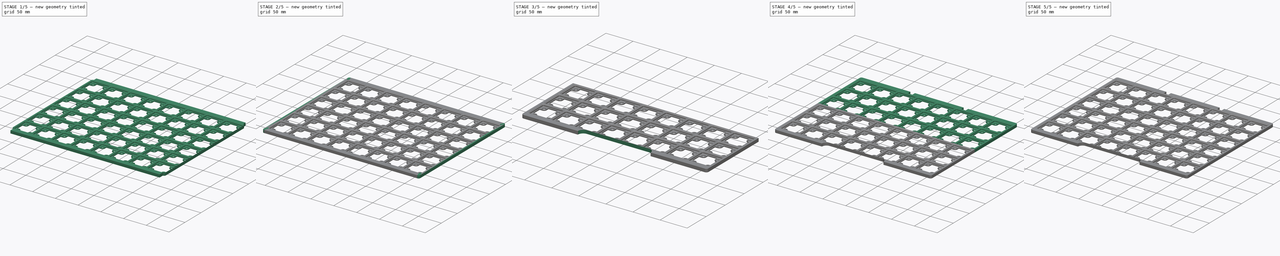
[diagram: build sequence overview — one tinted view per stage of 5, left to right]
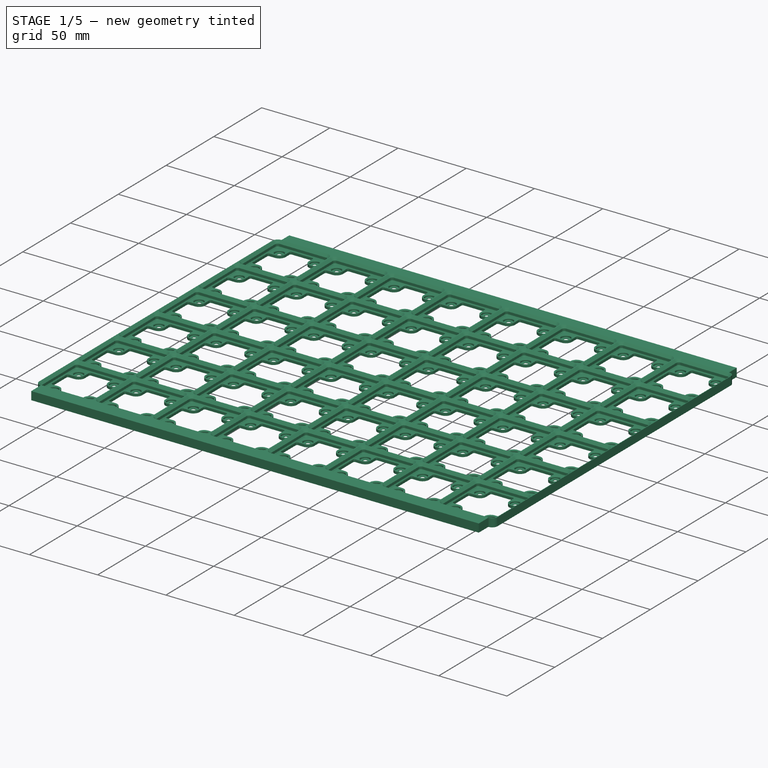
[diagram: stage 1 of 5 — iso view after this stage's code; geometry added in this stage tinted green]
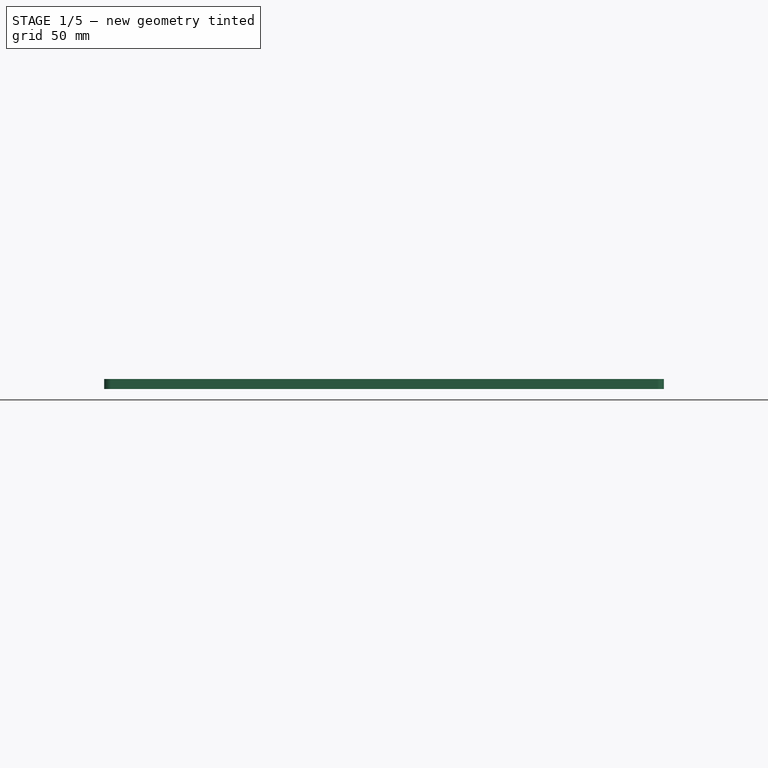
[diagram: stage 1 of 5 — front view after this stage's code; geometry added in this stage tinted green]
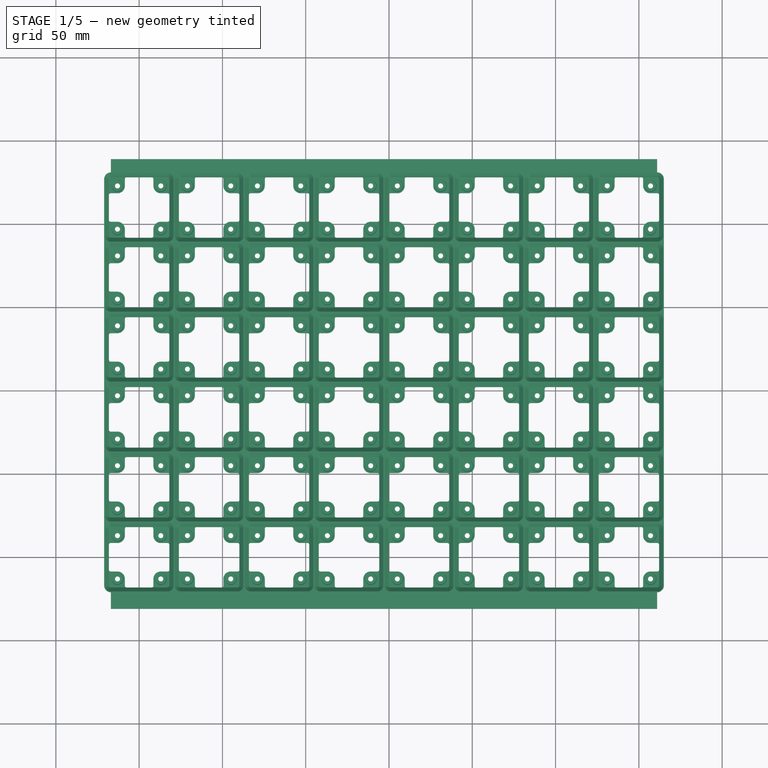
[diagram: stage 1 of 5 — top view after this stage's code; geometry added in this stage tinted green]
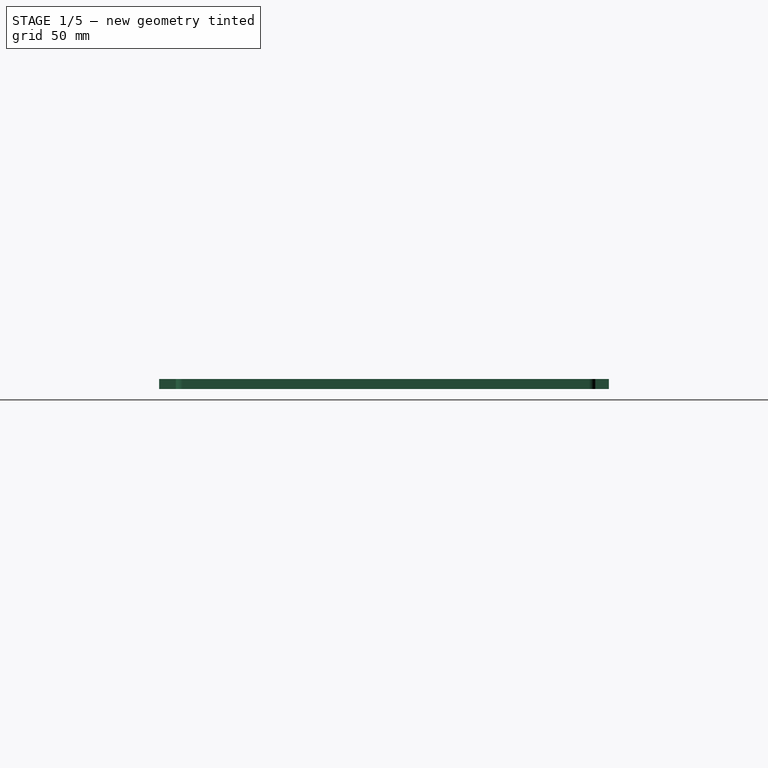
[diagram: stage 1 of 5 — right view after this stage's code; geometry added in this stage tinted green]
FCSTD DOCUMENT  (FreeCAD 1.0R39109 (Git))
Label: Sortainer drawer base
License: All rights reserved
LicenseURL: https://en.wikipedia.org/wiki/All_rights_reserved
objects: Part::FeaturePython×9, PartDesign::Pad×5, Sketcher::SketchObject×4, App::DocumentObjectGroup×3, PartDesign::Plane×2, PartDesign::FeaturePython×1, PartDesign::Pocket×1, PartDesign::Body×1
note: 40 computed .brp shape members not serialized (recipe doc carries the construction recipe); baked Part::Feature solids carry a one-line shape summary decoded from their .brp

FEATURE [PartDesign::FeaturePython] MagnetBaseplate  # WARN: FeaturePython — macro-defined, semantics opaque (R4)
  BaseProfileBottomChamfer = 0.7
  BaseProfileHeight = 4.25
  BaseProfileTopChamfer = 1.75
  BaseProfileVerticalSection = 1.8
  BaseThickness = 6.4
  BaseplateProfileTotalHeight = 0
  BaseplateTopLedgeWidth = 0.4
  BinBottomRadius = 1.15
  BinOuterRadius = 4
  BinVerticalRadius = 1.85
  GridSize = 42
  HeightUnitValue = 7
  MagnetBase = 0.4
  MagnetBaseHole = 3
  MagnetChamfer = 0.4
  MagnetEdgeThickness = 1.2
  MagnetHoleDepth = 1.4
  MagnetHoleDiameter = 6.5
  MagnetHoleDistanceFromEdge = 8
  MagnetHoles = true
  SmallFillet = 1
  Suppressed = false
  Tolerance = 0.25
  TotalHeight = 6.05
  version = 0.6.0
  xGridUnits = 8
  xTotalWidth = 336
  yGridUnits = 6
  yTotalWidth = 252
FEATURE [PartDesign::Pad] Pad  label="Back Pad"
  BaseFeature = -> MagnetBaseplate
  Direction = (0,1,0)
  Length = 8
  Length2 = 10
  Profile = -> MagnetBaseplate [Face2]
  Refine = true
  Suppressed = false
  Type = 0
FEATURE [PartDesign::Pad] Pad001  label="Front Pad"
  BaseFeature = -> Pad
  Direction = (0,-1,0)
  Length = 10
  Length2 = 10
  Profile = -> Pad [Face9]
  Refine = true
  Suppressed = false
  Type = 0
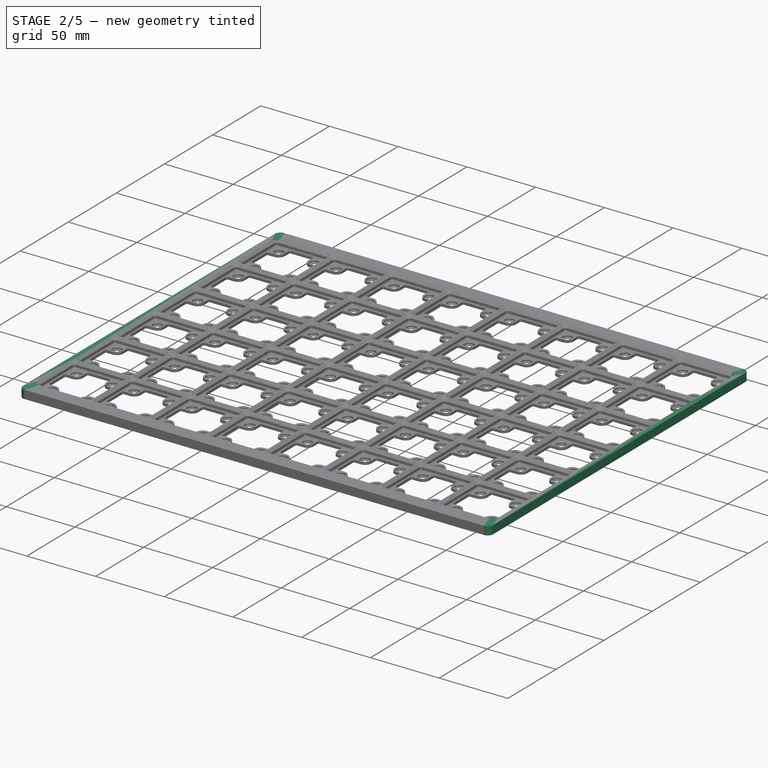
[diagram: stage 2 of 5 — iso view after this stage's code; geometry added in this stage tinted green]
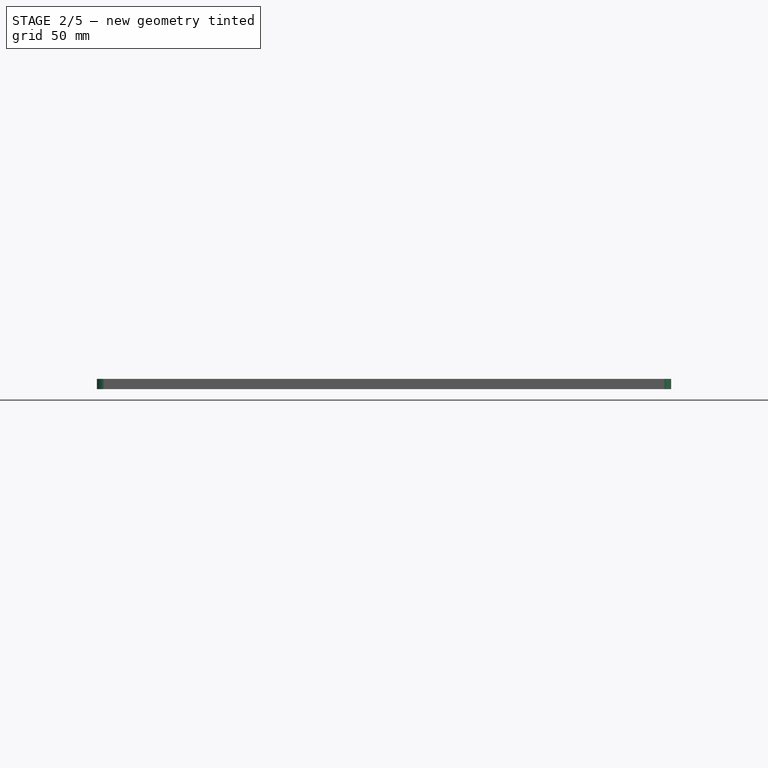
[diagram: stage 2 of 5 — front view after this stage's code; geometry added in this stage tinted green]
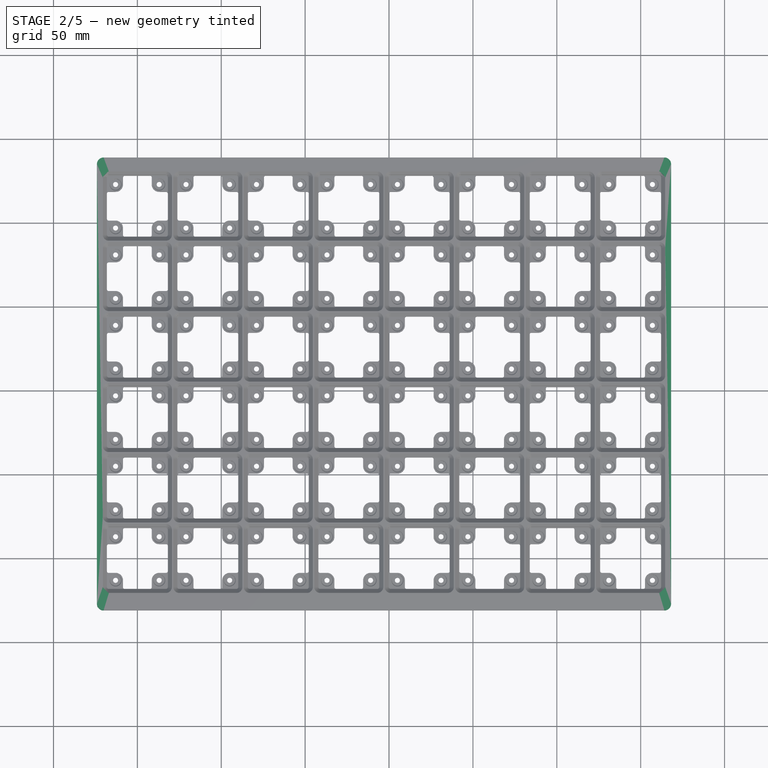
[diagram: stage 2 of 5 — top view after this stage's code; geometry added in this stage tinted green]
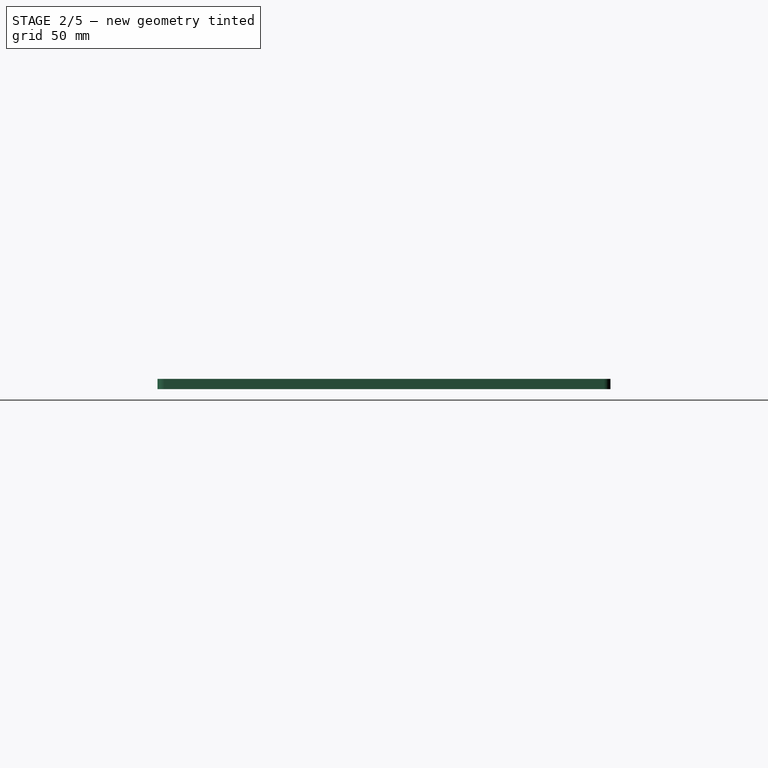
[diagram: stage 2 of 5 — right view after this stage's code; geometry added in this stage tinted green]
FEATURE [PartDesign::Pad] Pad002  label="Right Pad"
  BaseFeature = -> Pad001
  Direction = (1,0,0)
  Length = 3.125
  Length2 = 10
  Profile = -> Pad001 [Face7]
  Refine = true
  Suppressed = false
  Type = 0
FEATURE [PartDesign::Pad] Pad003  label="Left Pad"
  BaseFeature = -> Pad002
  Direction = (-1,0,0)
  Length = 3.125
  Length2 = 10
  Profile = -> Pad002 [Face5]
  Refine = true
  Suppressed = false
  Type = 0
FEATURE [Sketcher::SketchObject] Sketch  label="Corner Sketch"
  ArcFitTolerance = 1e-06
  AttachmentSupport = -> [Pad003]
  ExternalGeometry = -> [Pad003]
  FullyConstrained = true
  MakeInternals = false
  MapMode = 5
  sketch-geometry (24):
    g0: LineSegment StartX=-17 StartY=239 StartZ=0 EndX=-20.125 EndY=239 EndZ=0
    g1: LineSegment StartX=-24.125 StartY=227 StartZ=0 EndX=-24.125 EndY=235 EndZ=0
    g2: ArcOfCircle CenterX=-20.125 CenterY=235 CenterZ=0 NormalX=0 NormalY=0 NormalZ=1 AngleXU=0 Radius=4 StartAngle=1.5708 EndAngle=3.14159
    g3: LineSegment StartX=-17 StartY=239 StartZ=0 EndX=-17 EndY=231 EndZ=0
    g4: LineSegment StartX=-17 StartY=231 StartZ=0 EndX=-21 EndY=227 EndZ=0
    g5: LineSegment StartX=-21 StartY=227 StartZ=0 EndX=-24.125 EndY=227 EndZ=0
    g6: LineSegment StartX=311 StartY=239 StartZ=0 EndX=314.125 EndY=239 EndZ=0
    g7: LineSegment StartX=318.125 StartY=227 StartZ=0 EndX=318.125 EndY=235 EndZ=0
    g8: LineSegment StartX=311 StartY=231 StartZ=0 EndX=315 EndY=227 EndZ=0
    g9: LineSegment StartX=311 StartY=231 StartZ=0 EndX=311 EndY=239 EndZ=0
    g10: LineSegment StartX=315 StartY=227 StartZ=0 EndX=318.125 EndY=227 EndZ=0
    g11: ArcOfCircle CenterX=314.125 CenterY=235 CenterZ=0 NormalX=0 NormalY=0 NormalZ=1 AngleXU=0 Radius=4 StartAngle=2e-16 EndAngle=1.5708
    g12: LineSegment StartX=311 StartY=-21 StartZ=0 EndX=315 EndY=-17 EndZ=0
    g13: LineSegment StartX=311 StartY=-21 StartZ=0 EndX=311 EndY=-31 EndZ=0
    g14: LineSegment StartX=318.125 StartY=-17 StartZ=0 EndX=315 EndY=-17 EndZ=0
    g15: LineSegment StartX=311 StartY=-31 StartZ=0 EndX=314.125 EndY=-31 EndZ=0
    g16: LineSegment StartX=318.125 StartY=-17 StartZ=0 EndX=318.125 EndY=-27 EndZ=0
    g17: ArcOfCircle CenterX=314.125 CenterY=-27 CenterZ=0 NormalX=0 NormalY=0 NormalZ=1 AngleXU=0 Radius=4 StartAngle=4.71239 EndAngle=6.28319
    g18: LineSegment StartX=-24.125 StartY=-17 StartZ=0 EndX=-21 EndY=-17 EndZ=0
    g19: LineSegment StartX=-17 StartY=-21 StartZ=0 EndX=-21 EndY=-17 EndZ=0
    g20: LineSegment StartX=-17 StartY=-31 StartZ=0 EndX=-17 EndY=-21 EndZ=0
    g21: LineSegment StartX=-24.125 StartY=-17 StartZ=0 EndX=-24.125 EndY=-27 EndZ=0
    g22: LineSegment StartX=-17 StartY=-31 StartZ=0 EndX=-20.125 EndY=-31 EndZ=0
    g23: ArcOfCircle CenterX=-20.125 CenterY=-27 CenterZ=0 NormalX=0 NormalY=0 NormalZ=1 AngleXU=0 Radius=4 StartAngle=3.14159 EndAngle=4.71239
  constraints (52):
    c: Coincident(g0,g-3)
    c: Horizontal(g0)
    c: Coincident(g1,g-6)
    c: Vertical(g1)
    c: Radius(g2) = 4
    c: Tangent(g2,g0) = -1.5708
    c: Tangent(g2,g1) = 1.5708
    c: Coincident(g3,g0)
    c: Coincident(g3,g-5)
    c: Coincident(g4,g3)
    c: Coincident(g4,g-6)
    c: Coincident(g5,g1)
    c: Coincident(g5,g4)
    c: Coincident(g6,g-7)
    c: Horizontal(g6)
    c: Coincident(g7,g-10)
    c: Vertical(g7)
    c: Coincident(g8,g-8)
    c: Coincident(g8,g-9)
    c: Coincident(g9,g8)
    c: Coincident(g9,g6)
    c: Coincident(g10,g8)
    c: Coincident(g10,g7)
    c: Tangent(g11,g7) = -1.5708
    c: Tangent(g11,g6) = 1.5708
    c: Radius(g11) = 4
    c: Coincident(g12,g-12)
    c: Coincident(g12,g-11)
    c: Coincident(g13,g12)
    c: Coincident(g13,g-13)
    c: Coincident(g14,g-14)
    c: Coincident(g14,g12)
    c: Coincident(g15,g13)
    c: Horizontal(g15)
    c: Coincident(g16,g14)
    c: Vertical(g16)
    c: Tangent(g17,g16) = 1.5708
    c: Tangent(g17,g15) = -1.5708
    c: Radius(g17) = 4
    c: Coincident(g18,g-15)
    c: Coincident(g18,g-18)
    c: Coincident(g19,g-17)
    c: Coincident(g19,g18)
    c: Coincident(g20,g-16)
    c: Coincident(g20,g19)
    c: Coincident(g21,g18)
    c: Vertical(g21)
    c: Coincident(g22,g20)
    c: Horizontal(g22)
    c: Tangent(g23,g22) = 1.5708
    c: Tangent(g23,g21) = -1.5708
    c: Radius(g23) = 4
FEATURE [PartDesign::Pad] Pad004  label="Corner Pad"
  BaseFeature = -> Pad003
  Direction = (0,0,1)
  Length = 6.05
  Length2 = 10
  Profile = -> Sketch
  ReferenceAxis = -> Sketch [N_Axis]
  Refine = true
  Reversed = true
  Suppressed = false
  Type = 0
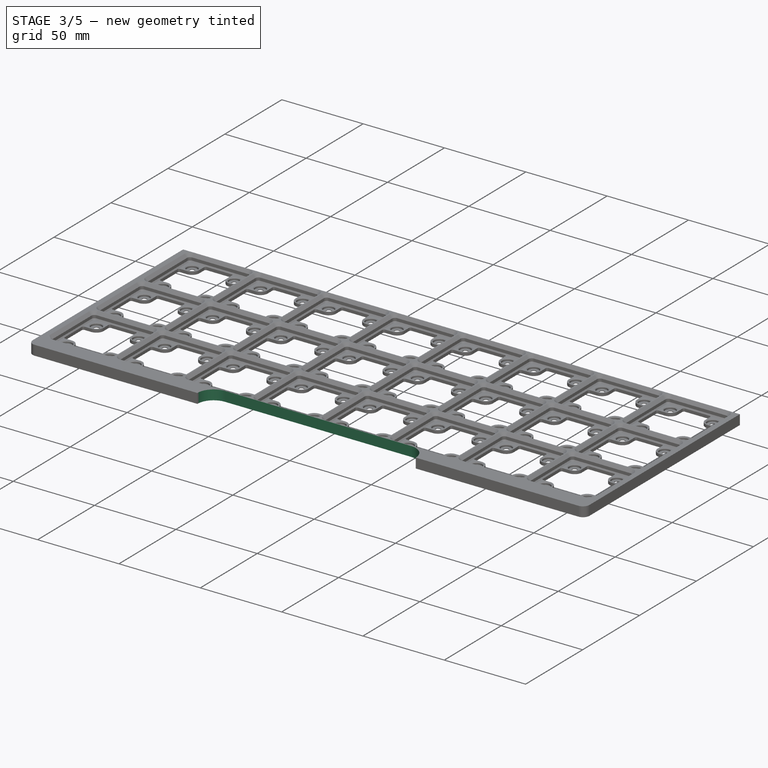
[diagram: stage 3 of 5 — iso view after this stage's code; geometry added in this stage tinted green]
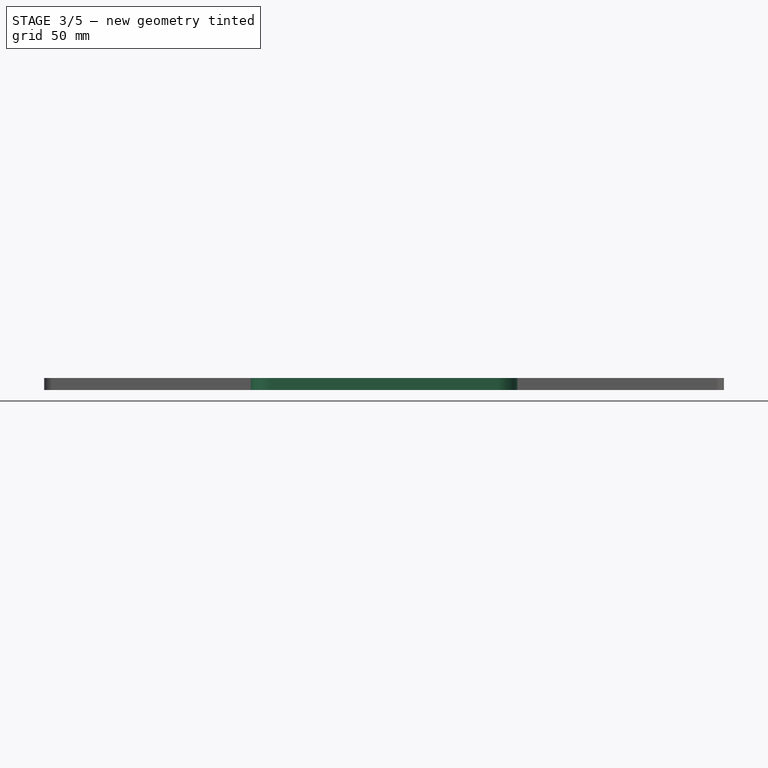
[diagram: stage 3 of 5 — front view after this stage's code; geometry added in this stage tinted green]
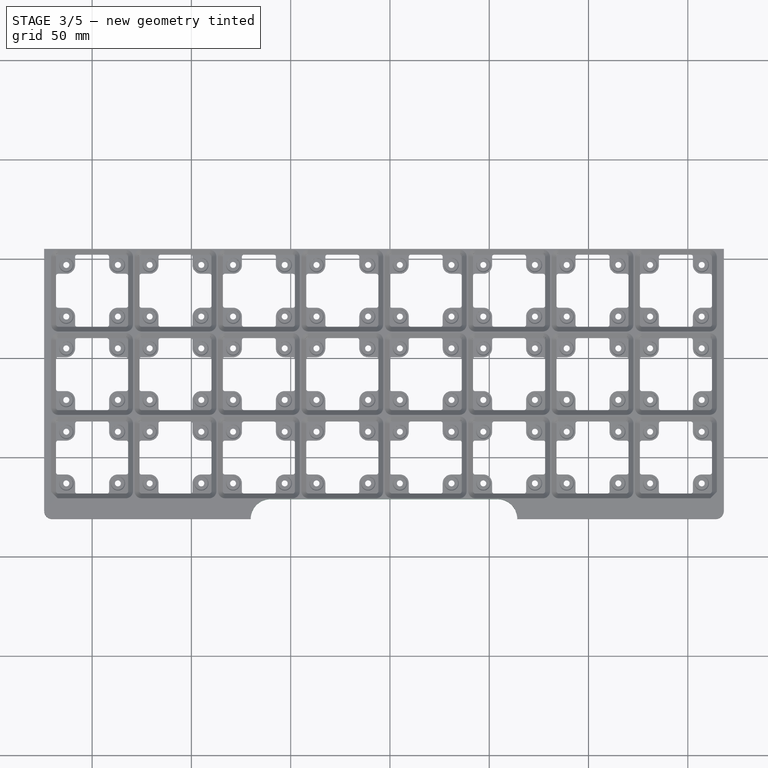
[diagram: stage 3 of 5 — top view after this stage's code; geometry added in this stage tinted green]
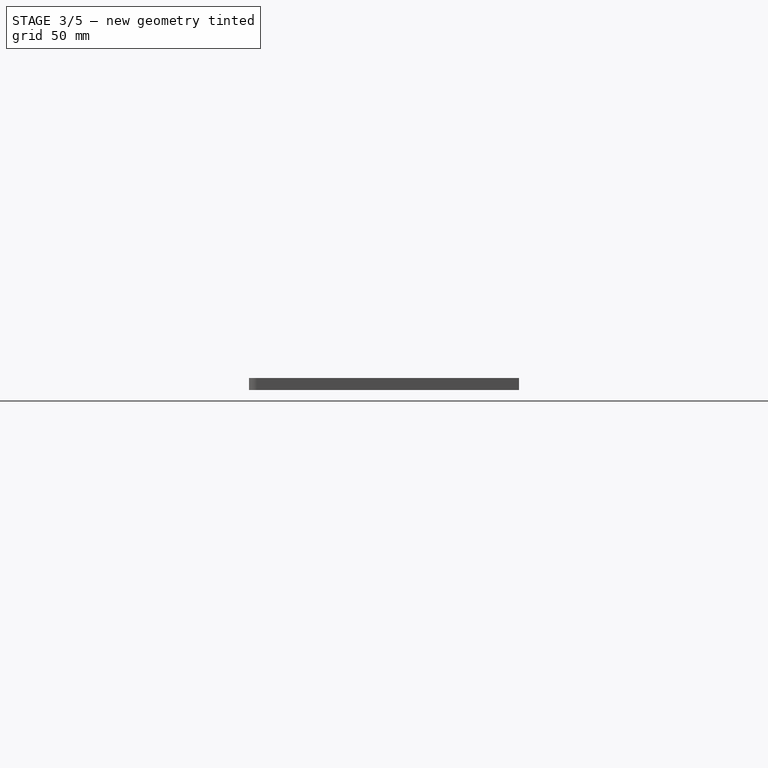
[diagram: stage 3 of 5 — right view after this stage's code; geometry added in this stage tinted green]
FEATURE [Sketcher::SketchObject] Sketch001  label="Cut out sketch"
  ArcFitTolerance = 1e-06
  AttachmentSupport = -> [Pad004]
  ExternalGeometry = -> [Pad004]
  FullyConstrained = true
  MakeInternals = false
  MapMode = 5
  sketch-geometry (14):
    g0: LineSegment StartX=83.875 StartY=239 StartZ=0 EndX=83.875 EndY=231 EndZ=0
    g1: LineSegment StartX=83.875 StartY=231 StartZ=0 EndX=93.875 EndY=231 EndZ=0
    g2: LineSegment StartX=93.875 StartY=231 StartZ=0 EndX=93.875 EndY=239 EndZ=0
    g3: LineSegment StartX=93.875 StartY=239 StartZ=0 EndX=83.875 EndY=239 EndZ=0
    g4: LineSegment StartX=210.125 StartY=239 StartZ=0 EndX=210.125 EndY=231 EndZ=0
    g5: LineSegment StartX=210.125 StartY=231 StartZ=0 EndX=200.125 EndY=231 EndZ=0
    g6: LineSegment StartX=200.125 StartY=231 StartZ=0 EndX=200.125 EndY=239 EndZ=0
    g7: LineSegment StartX=200.125 StartY=239 StartZ=0 EndX=210.125 EndY=239 EndZ=0
    g8: ArcOfCircle CenterX=204.125 CenterY=-31 CenterZ=0 NormalX=0 NormalY=0 NormalZ=1 AngleXU=0 Radius=10 StartAngle=0 EndAngle=1.5708
    g9: LineSegment StartX=204.125 StartY=-31 StartZ=0 EndX=214.125 EndY=-31 EndZ=0
    g10: ArcOfCircle CenterX=89.875 CenterY=-31 CenterZ=0 NormalX=0 NormalY=0 NormalZ=1 AngleXU=0 Radius=10 StartAngle=1.5708 EndAngle=3.14159
    g11: LineSegment StartX=204.125 StartY=-21 StartZ=0 EndX=89.875 EndY=-21 EndZ=0
    g12: LineSegment StartX=79.875 StartY=-31 StartZ=0 EndX=89.875 EndY=-31 EndZ=0
    g13: LineSegment StartX=204.125 StartY=-31 StartZ=0 EndX=89.875 EndY=-31 EndZ=0
  constraints (40):
    c: Coincident(g0,g1)
    c: Coincident(g1,g2)
    c: Coincident(g2,g3)
    c: Coincident(g3,g0)
    c: Vertical(g0)
    c: Vertical(g2)
    c: Horizontal(g1)
    c: Horizontal(g3)
    c: PointOnObject(g0,g-4)
    c: DistanceX(g3,g3) = 10
    c: DistanceX(g-3,g0) = 108
    c: Coincident(g4,g5)
    c: Coincident(g5,g6)
    c: Coincident(g6,g7)
    c: Coincident(g7,g4)
    c: Vertical(g4)
    c: Vertical(g6)
    c: Horizontal(g5)
    c: Horizontal(g7)
    c: PointOnObject(g4,g-4)
    c: Equal(g7,g3)
    c: DistanceX(g4,g-5) = 108
    c: DistanceY(g2,g2) = 8
    c: Equal(g6,g2)
    c: PointOnObject(g8,g-10)
    c: PointOnObject(g8,g-10)
    c: Coincident(g9,g8)
    c: Coincident(g9,g8)
    c: PointOnObject(g10,g-10)
    c: PointOnObject(g10,g-10)
    c: Horizontal(g11)
    c: Coincident(g12,g10)
    c: Coincident(g12,g10)
    c: Coincident(g13,g8)
    c: Coincident(g13,g10)
    c: DistanceX(g8,g-6) = 104
    c: DistanceX(g-8,g10) = 104
    c: Tangent(g11,g10) = -1.5708
    c: Tangent(g11,g8) = -1.5708
    c: Distance(g9,g9) = 10
FEATURE [PartDesign::Pocket] Pocket  label="Back and Front Cut outs"
  BaseFeature = -> Pad004
  Direction = (0,0,-1)
  Length = 5
  Length2 = 5
  Profile = -> Sketch001
  ReferenceAxis = -> Sketch001 [N_Axis]
  Refine = true
  Suppressed = false
  Type = 1
FEATURE [Sketcher::SketchObject] Sketch002  label="Top Midpoint Sketch"
  ArcFitTolerance = 1e-06
  AttachmentSupport = -> [Pocket]
  ExternalGeometry = -> [Pocket]
  FullyConstrained = true
  MakeInternals = false
  MapMode = 5
  sketch-geometry (2):
    g0: LineSegment StartX=139 StartY=105 StartZ=0 EndX=155 EndY=105 EndZ=0
    g1: LineSegment StartX=147 StartY=117.45 StartZ=0 EndX=147 EndY=92.55 EndZ=0
  constraints (4):
    c: Symmetric(g-3,g-4,g1)
    c: Symmetric(g-6,g-5,g1)
    c: Symmetric(g-3,g-6,g0)
    c: Symmetric(g-4,g-5,g0)
FEATURE [Sketcher::SketchObject] Sketch003  label="Bottom Midpoint Sketch"
  ArcFitTolerance = 1e-06
  AttachmentSupport = -> [Pocket]
  ExternalGeometry = -> [Pocket]
  FullyConstrained = true
  MakeInternals = false
  MapMode = 5
  Placement = pos=(0,0,-6.05) rot=(1,0,0;3.14159rad)
  sketch-geometry (2):
    g0: LineSegment StartX=139 StartY=-105 StartZ=0 EndX=155 EndY=-105 EndZ=0
    g1: LineSegment StartX=147 StartY=-92.55 StartZ=0 EndX=147 EndY=-117.45 EndZ=0
  constraints (4):
    c: Symmetric(g-3,g-4,g1)
    c: Symmetric(g-6,g-5,g1)
    c: Symmetric(g-3,g-6,g0)
    c: Symmetric(g-4,g-5,g0)
FEATURE [PartDesign::Plane] DatumPlane  label="Top Bottom Split Plane"
  AttachmentSupport = -> [Sketch003,Sketch002]
  Length = 198.974
  MapMode = 51
  Placement = pos=(139,105,-6.05) rot=(1,0,0;1.5708rad)
  ResizeMode = 0
  Width = 68.9737
FEATURE [PartDesign::Body] Body  label="Base"
  AllowCompound = false
  Group = -> [MagnetBaseplate,Pad,Pad001,Pad002,Pad003,Sketch,Pad004,Sketch001,Pocket,Sketch002,Sketch003,DatumPlane]
  Origin = -> Origin
  Tip = -> Pocket
FEATURE [PartDesign::Plane] DatumPlane001  label="Left Right Split Plane"
  AttachmentSupport = -> [Sketch002,Sketch003]
  Length = 66.879
  MapMode = 49
  Placement = pos=(147,117.45,0) rot=(0,1,0;1.5708rad)
  ResizeMode = 0
  Width = 159.329
FEATURE [Part::FeaturePython] Slice  # WARN: FeaturePython — macro-defined, semantics opaque (R4)
  Base = -> Pocket
  Mode = 1
  Tolerance = 0
  Tools = -> [DatumPlane]
FEATURE [Part::FeaturePython] Slice_child1  label="Front Slice"  # WARN: FeaturePython — macro-defined, semantics opaque (R4)
  Base = -> Slice
  FilterType = 1
  Invert = false
  OverrideMaxVal = 0
  WindowFrom = 80
  WindowTo = 100
  items = 1
FEATURE [App::DocumentObjectGroup] GrExplode_Slice001  label="Slice Back"
  Group = -> [Slice001_child0,Slice001_child1]
FEATURE [Part::FeaturePython] Slice002  # WARN: FeaturePython — macro-defined, semantics opaque (R4)
  Base = -> Slice_child1
  Mode = 1
  Tolerance = 0
  Tools = -> [DatumPlane001]
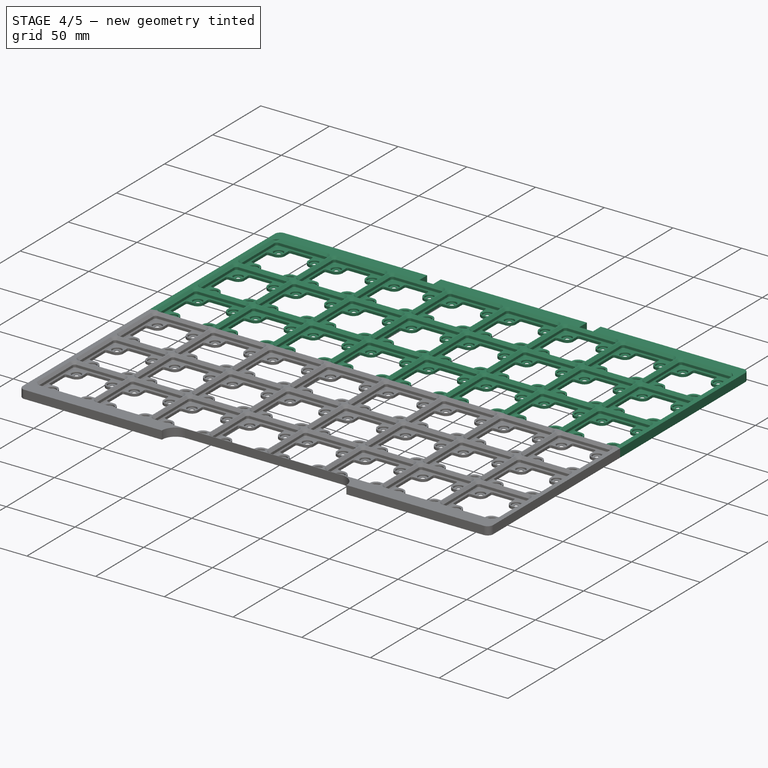
[diagram: stage 4 of 5 — iso view after this stage's code; geometry added in this stage tinted green]
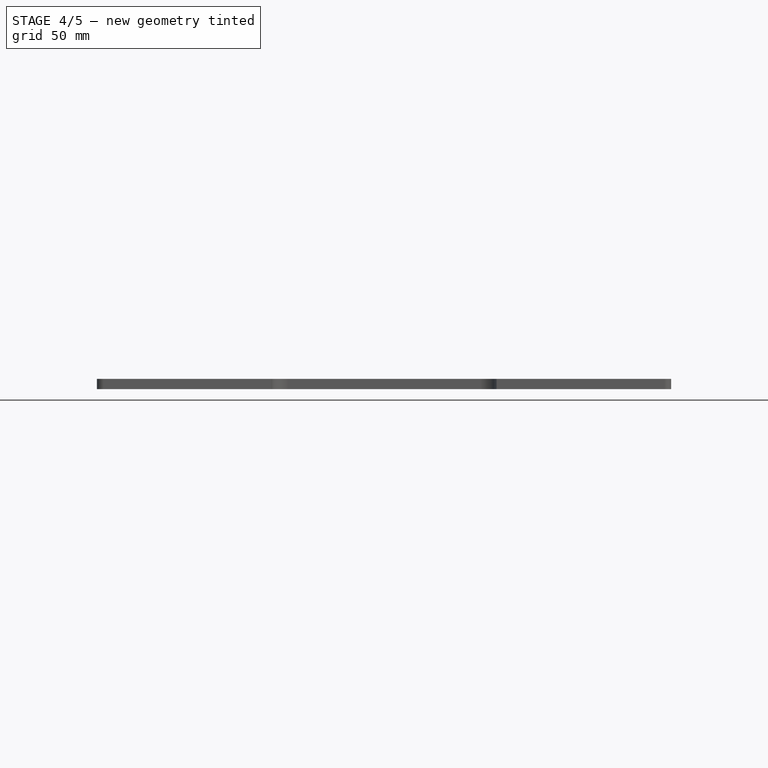
[diagram: stage 4 of 5 — front view after this stage's code; geometry added in this stage tinted green]
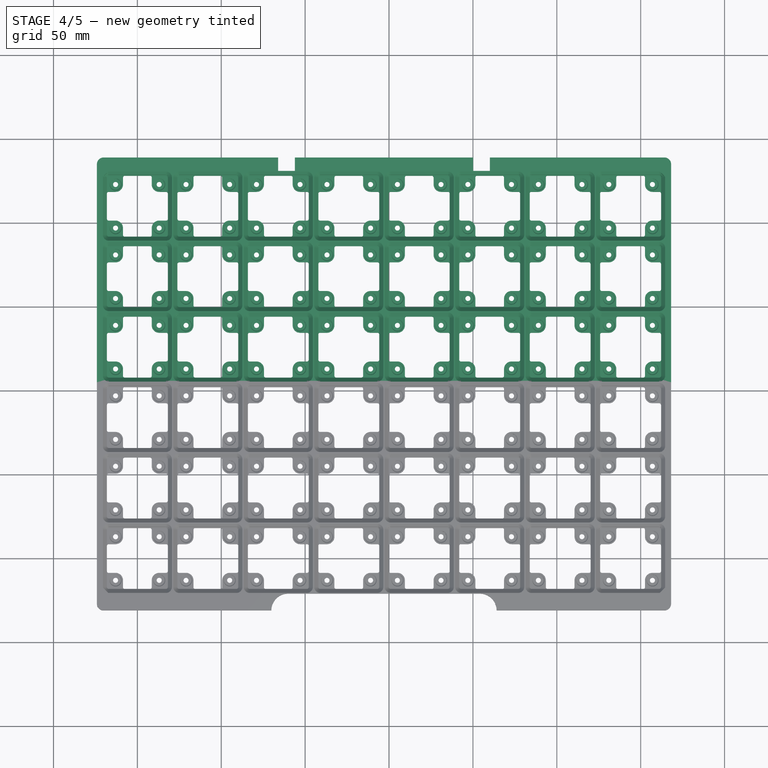
[diagram: stage 4 of 5 — top view after this stage's code; geometry added in this stage tinted green]
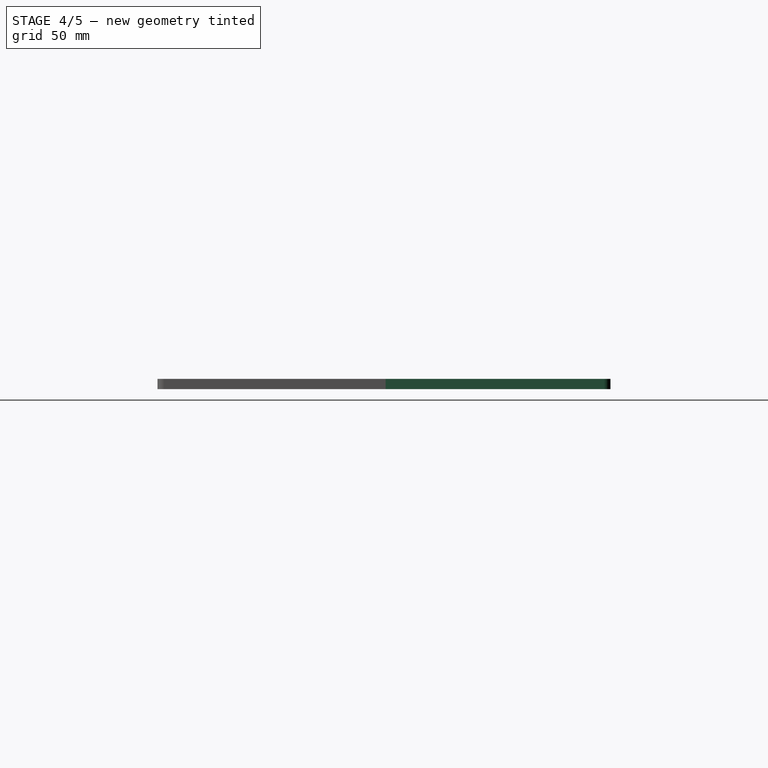
[diagram: stage 4 of 5 — right view after this stage's code; geometry added in this stage tinted green]
FEATURE [Part::FeaturePython] Slice_child0  label="Back Slice"  # WARN: FeaturePython — macro-defined, semantics opaque (R4)
  Base = -> Slice
  FilterType = 1
  Invert = false
  OverrideMaxVal = 0
  WindowFrom = 80
  WindowTo = 100
  items = 0
FEATURE [Part::FeaturePython] Slice002_child0  label="Slice Front Left"  # WARN: FeaturePython — macro-defined, semantics opaque (R4)
  Base = -> Slice002
  FilterType = 1
  Invert = false
  OverrideMaxVal = 0
  WindowFrom = 80
  WindowTo = 100
  items = 0
FEATURE [Part::FeaturePython] Slice002_child1  label="Slice Front Right"  # WARN: FeaturePython — macro-defined, semantics opaque (R4)
  Base = -> Slice002
  FilterType = 1
  Invert = false
  OverrideMaxVal = 0
  WindowFrom = 80
  WindowTo = 100
  items = 1
FEATURE [App::DocumentObjectGroup] GrExplode_Slice002  label="Slice Front"
  Group = -> [Slice002_child0,Slice002_child1]
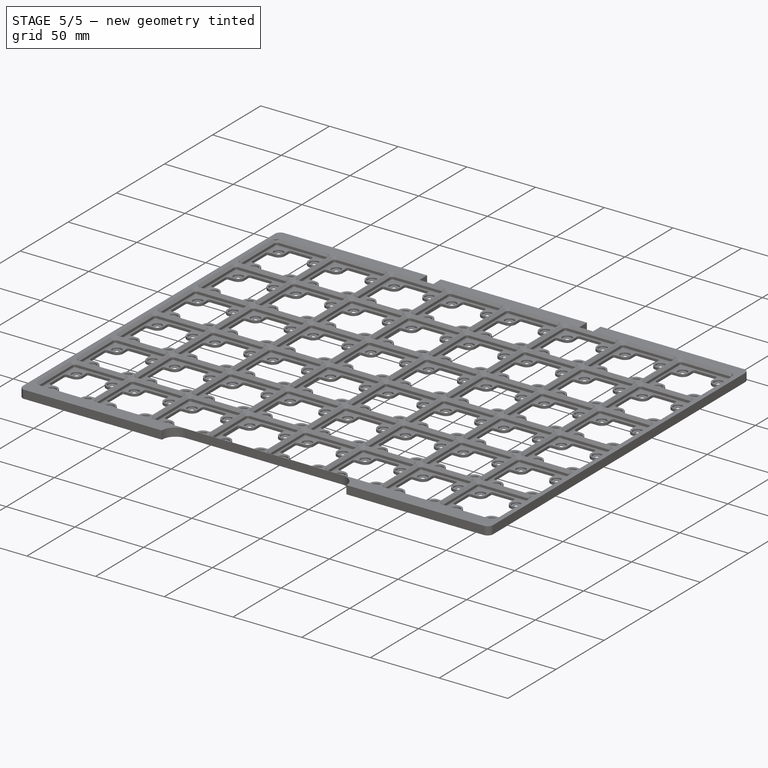
[diagram: stage 5 of 5 — iso view after this stage's code; geometry added in this stage tinted green]
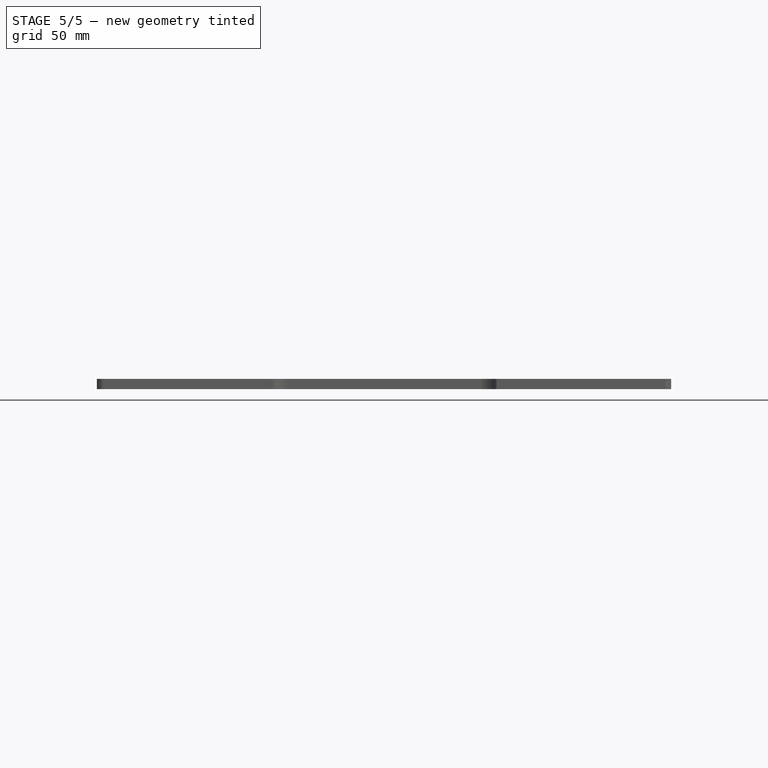
[diagram: stage 5 of 5 — front view after this stage's code; geometry added in this stage tinted green]
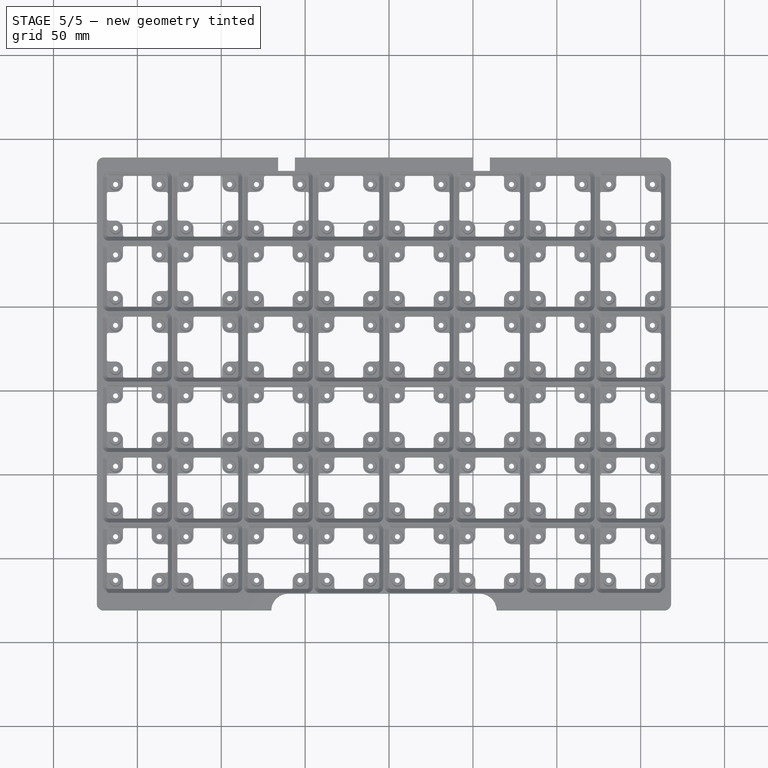
[diagram: stage 5 of 5 — top view after this stage's code; geometry added in this stage tinted green]
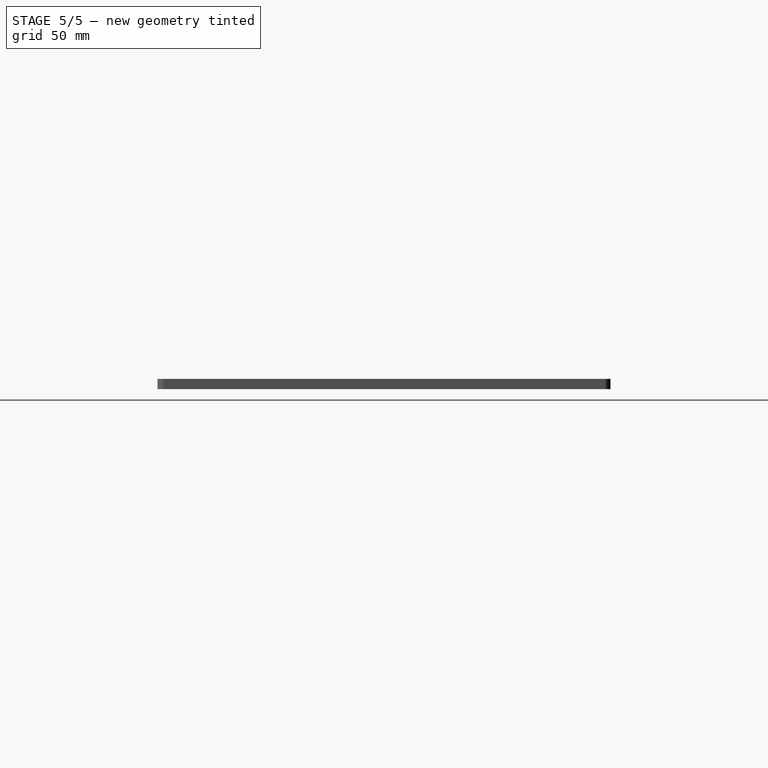
[diagram: stage 5 of 5 — right view after this stage's code; geometry added in this stage tinted green]
FEATURE [App::DocumentObjectGroup] GrExplode_Slice  label="Slice Front and Back"
  Group = -> [Slice_child0,Slice_child1,DatumPlane001]
FEATURE [Part::FeaturePython] Slice001  # WARN: FeaturePython — macro-defined, semantics opaque (R4)
  Base = -> Slice_child0
  Mode = 1
  Tolerance = 0
  Tools = -> [DatumPlane001]
FEATURE [Part::FeaturePython] Slice001_child0  label="Slice Back Left"  # WARN: FeaturePython — macro-defined, semantics opaque (R4)
  Base = -> Slice001
  FilterType = 1
  Invert = false
  OverrideMaxVal = 0
  WindowFrom = 80
  WindowTo = 100
  items = 0
FEATURE [Part::FeaturePython] Slice001_child1  label="Slice Back Right"  # WARN: FeaturePython — macro-defined, semantics opaque (R4)
  Base = -> Slice001
  FilterType = 1
  Invert = false
  OverrideMaxVal = 0
  WindowFrom = 80
  WindowTo = 100
  items = 1
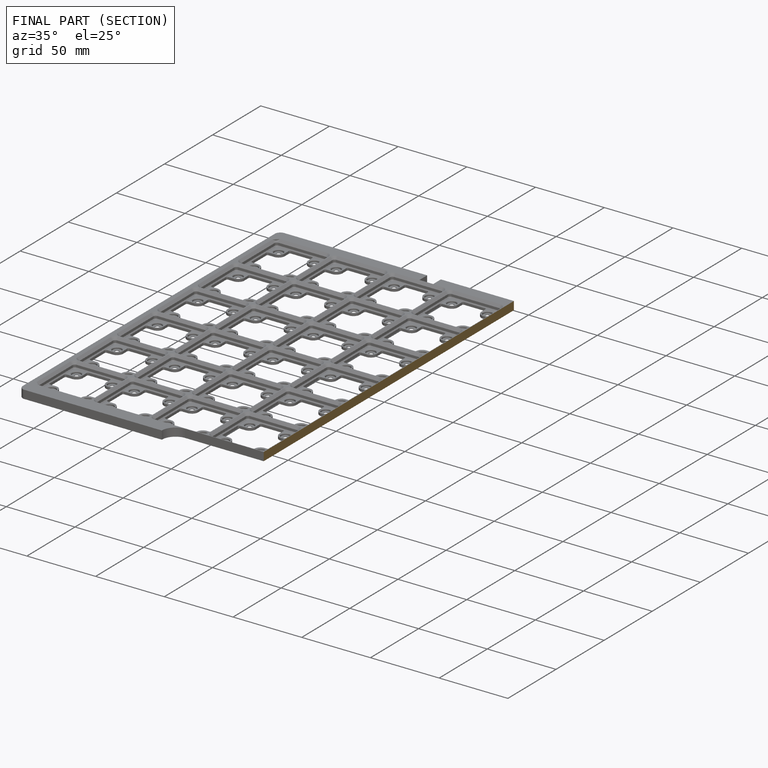
[diagram: finished part — half-section view (interior)]
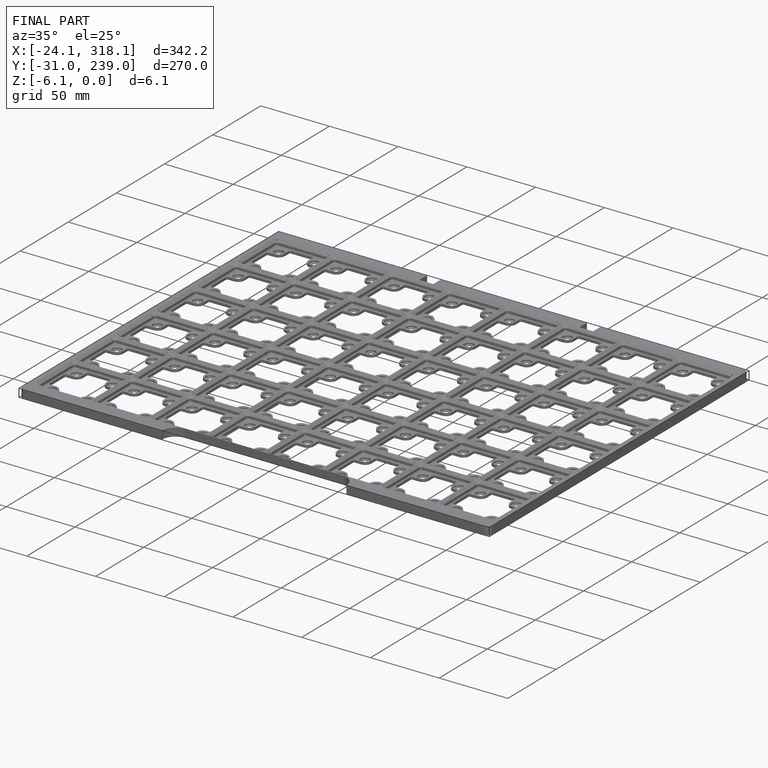
[diagram: finished part — iso view with bounding-box wireframe]
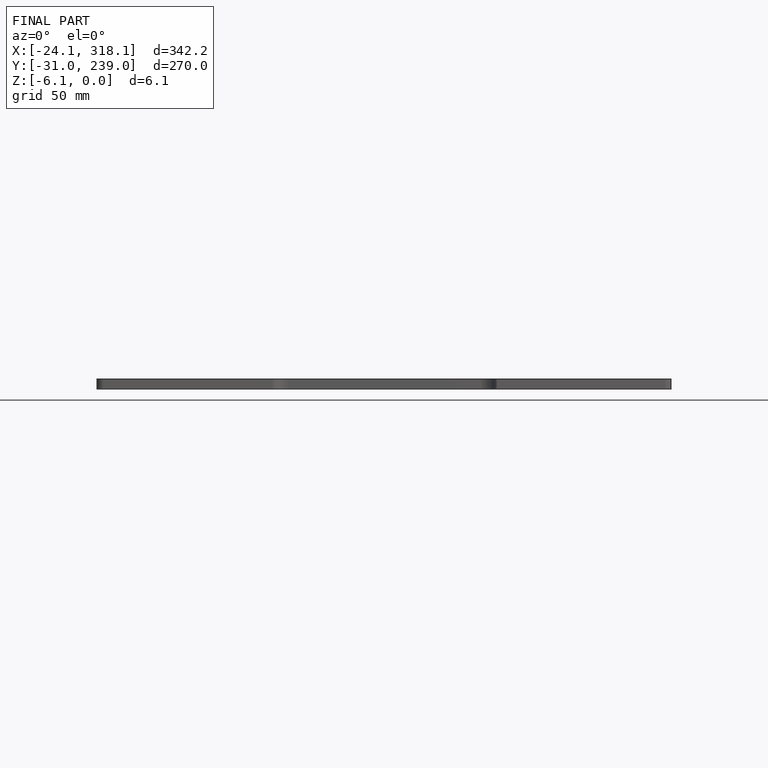
[diagram: finished part — front view with bounding-box wireframe]
